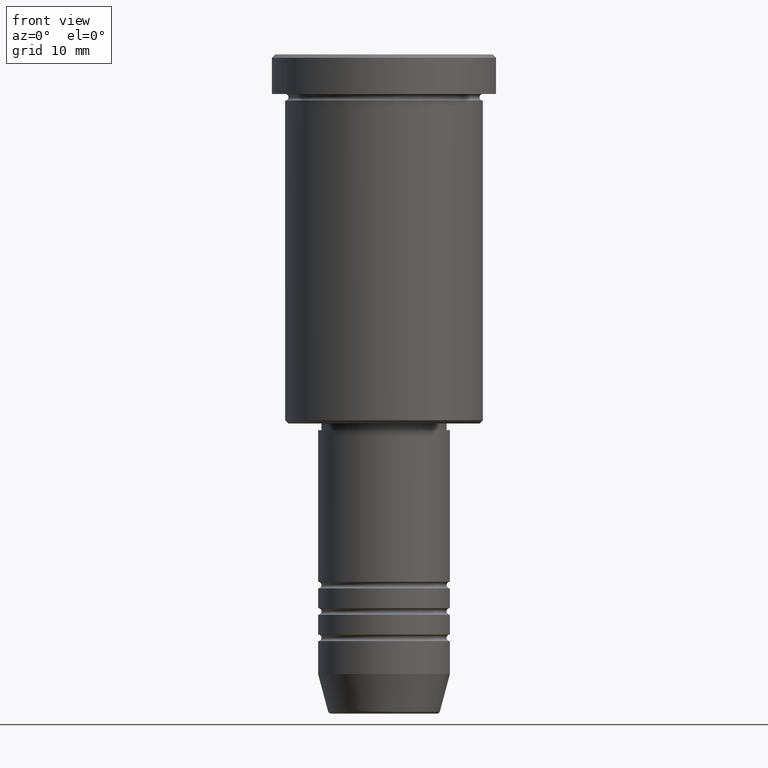
[diagram: clean part render]
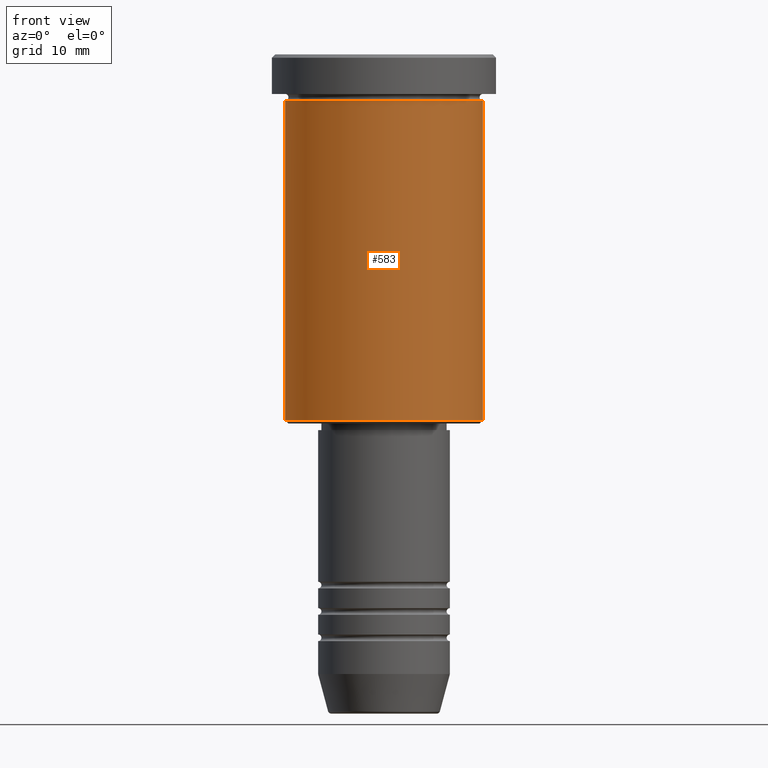
[diagram: same view with one face highlighted and labeled with its STEP entity id]
A machine part, front view. The second image highlights one B-rep face of the part: STEP entity #583.
In plain terms, the highlighted cylindrical surface (partial cylindrical patch) has radius 15 mm, axis along (-0, -0, 1).
Its self-contained STEP definition (entity closure, byte-faithful):
#12 = EDGE_CURVE ( 'NONE', #167, #206, #1127, .T. ) ;
#52 = CARTESIAN_POINT ( 'NONE',  ( -15.00000000000000000, 1.836970198721029589E-15, 0.000000000000000000 ) ) ;
#123 = DIRECTION ( 'NONE',  ( -1.000000000000000000, 0.000000000000000000, 0.000000000000000000 ) ) ;
#131 = CARTESIAN_POINT ( 'NONE',  ( 15.00000000000000000, 0.000000000000000000, -55.49999999999997158 ) ) ;
#167 = VERTEX_POINT ( 'NONE', #847 ) ;
#178 = AXIS2_PLACEMENT_3D ( 'NONE', #869, #251, #517 ) ;
#182 = EDGE_CURVE ( 'NONE', #884, #167, #316, .T. ) ;
#195 = LINE ( 'NONE', #535, #562 ) ;
#206 = VERTEX_POINT ( 'NONE', #494 ) ;
#213 = VERTEX_POINT ( 'NONE', #131 ) ;
#239 = DIRECTION ( 'NONE',  ( -0.000000000000000000, -0.000000000000000000, 1.000000000000000000 ) ) ;
#251 = DIRECTION ( 'NONE',  ( -0.000000000000000000, -0.000000000000000000, 1.000000000000000000 ) ) ;
#254 = ORIENTED_EDGE ( 'NONE', *, *, #182, .F. ) ;
#299 = DIRECTION ( 'NONE',  ( 1.000000000000000000, 0.000000000000000000, 0.000000000000000000 ) ) ;
#316 = LINE ( 'NONE', #52, #1169 ) ;
#346 = ORIENTED_EDGE ( 'NONE', *, *, #12, .F. ) ;
#354 = CIRCLE ( 'NONE', #396, 15.00000000000000000 ) ;
#382 = CARTESIAN_POINT ( 'NONE',  ( -15.00000000000000000, 1.836970198721029589E-15, -55.49999999999997158 ) ) ;
#386 = DIRECTION ( 'NONE',  ( -0.000000000000000000, -0.000000000000000000, 1.000000000000000000 ) ) ;
#390 = CARTESIAN_POINT ( 'NONE',  ( 0.000000000000000000, 0.000000000000000000, -6.999999999999995559 ) ) ;
#396 = AXIS2_PLACEMENT_3D ( 'NONE', #930, #386, #123 ) ;
#494 = CARTESIAN_POINT ( 'NONE',  ( 15.00000000000000000, 0.000000000000000000, -6.999999999999995559 ) ) ;
#517 = DIRECTION ( 'NONE',  ( 1.000000000000000000, 0.000000000000000000, 0.000000000000000000 ) ) ;
#535 = CARTESIAN_POINT ( 'NONE',  ( 15.00000000000000000, 0.000000000000000000, 0.000000000000000000 ) ) ;
#562 = VECTOR ( 'NONE', #886, 1000.000000000000000 ) ;
#583 = ADVANCED_FACE ( 'NONE', ( #1144 ), #875, .T. ) ;
#608 = AXIS2_PLACEMENT_3D ( 'NONE', #390, #904, #299 ) ;
#721 = EDGE_CURVE ( 'NONE', #213, #206, #195, .T. ) ;
#788 = ORIENTED_EDGE ( 'NONE', *, *, #721, .T. ) ;
#847 = CARTESIAN_POINT ( 'NONE',  ( -15.00000000000000000, 1.836970198721029589E-15, -6.999999999999995559 ) ) ;
#862 = EDGE_CURVE ( 'NONE', #884, #213, #354, .T. ) ;
#869 = CARTESIAN_POINT ( 'NONE',  ( 0.000000000000000000, 0.000000000000000000, 0.000000000000000000 ) ) ;
#875 = CYLINDRICAL_SURFACE ( 'NONE', #178, 15.00000000000000000 ) ;
#884 = VERTEX_POINT ( 'NONE', #382 ) ;
#886 = DIRECTION ( 'NONE',  ( -0.000000000000000000, -0.000000000000000000, 1.000000000000000000 ) ) ;
#888 = ORIENTED_EDGE ( 'NONE', *, *, #862, .T. ) ;
#904 = DIRECTION ( 'NONE',  ( -0.000000000000000000, -0.000000000000000000, 1.000000000000000000 ) ) ;
#930 = CARTESIAN_POINT ( 'NONE',  ( 0.000000000000000000, 0.000000000000000000, -55.49999999999997158 ) ) ;
#951 = EDGE_LOOP ( 'NONE', ( #254, #888, #788, #346 ) ) ;
#1127 = CIRCLE ( 'NONE', #608, 15.00000000000000000 ) ;
#1144 = FACE_OUTER_BOUND ( 'NONE', #951, .T. ) ;
#1169 = VECTOR ( 'NONE', #239, 1000.000000000000000 ) ;